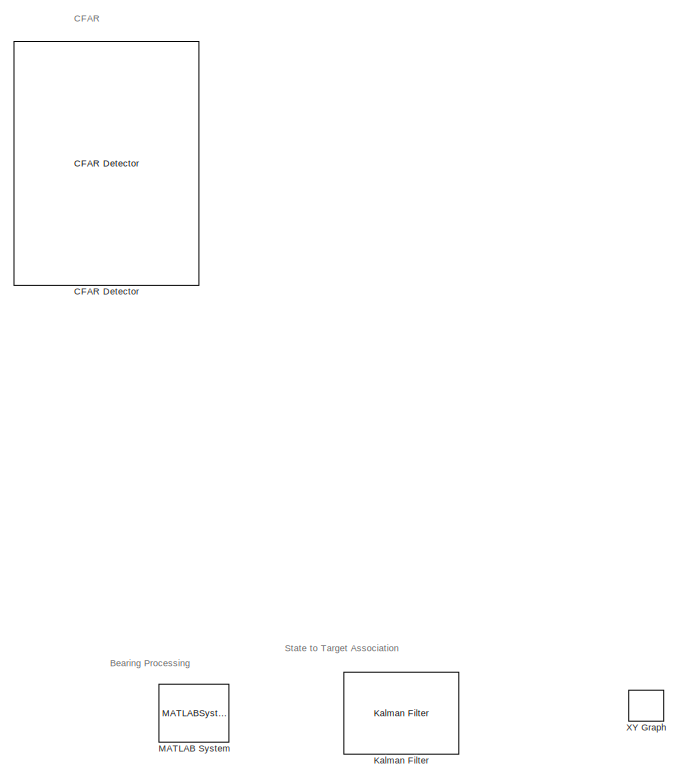
[diagram: root canvas - part 1/2, right side, full height]
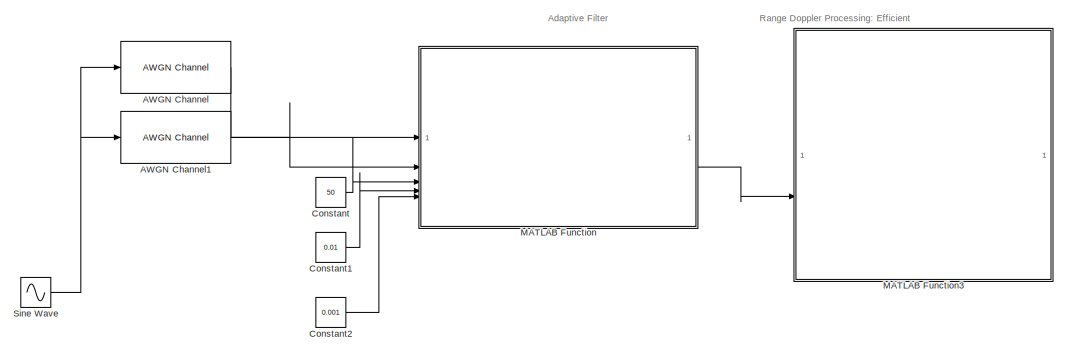
[diagram: root canvas - part 2/2, top left region]
MODEL slx_c5dcfe9b246c
KIND model
CONFIG AbsTol = auto
CONFIG EnableMultiTasking = off
CONFIG FixedStep = auto
CONFIG MaxStep = auto
CONFIG MinStep = auto
CONFIG RelTol = 1e-3
CONFIG SampleTimeConstraint = Unconstrained
CONFIG SolverName = VariableStepAuto
CONFIG StartTime = 0.0
CONFIG StopTime = 10.0
BLOCK [Reference] AWGN Channel  REF=commchan3/AWGN
Channel
  SourceBlock = commchan3/AWGN\nChannel
  SourceType = AWGN Channel
BLOCK [Reference] AWGN Channel1  REF=commchan3/AWGN
Channel
  SourceBlock = commchan3/AWGN\nChannel
  SourceType = AWGN Channel
BLOCK [Reference] CFAR Detector  REF=phaseddetectlib/CFAR Detector
  SourceBlock = phaseddetectlib/CFAR Detector
  SourceType = phased.CFARDetector
BLOCK [Constant] Constant
  Value = 50
BLOCK [Constant] Constant1
  Value = 0.01
BLOCK [Constant] Constant2
  Value = 0.001
BLOCK [Reference] Kalman Filter  REF=dspadpt3/Kalman Filter
  SourceBlock = dspadpt3/Kalman Filter
  SourceType = Kalman Filter
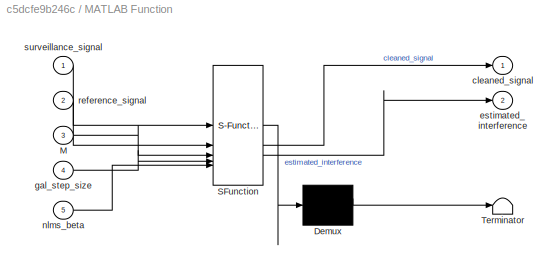
BLOCK [SubSystem] MATLAB Function
  ErrorFcn = Stateflow.Translate.translate
  PermitHierarchicalResolution = ExplicitOnly
  SFBlockType = MATLAB Function
  TreatAsAtomicUnit = on
BLOCK [Demux] MATLAB Function/ Demux 
  Outputs = 1
BLOCK [S-Function] MATLAB Function/ SFunction 
  EnableBusSupport = off
  FunctionName = sf_sfun
  PortCounts = [5 3]
  SFcnIsStateOwnerBlock = off
  SFunctionDeploymentMode = off
  Tag = Stateflow S-Function 2
BLOCK [Terminator] MATLAB Function/ Terminator 
BLOCK [Inport] MATLAB Function/M
  Port = 3
BLOCK [Outport] MATLAB Function/cleaned_signal
BLOCK [Outport] MATLAB Function/estimated_interference
  Port = 2
BLOCK [Inport] MATLAB Function/gal_step_size
  Port = 4
BLOCK [Inport] MATLAB Function/nlms_beta
  Port = 5
BLOCK [Inport] MATLAB Function/reference_signal
  Port = 2
BLOCK [Inport] MATLAB Function/surveillance_signal
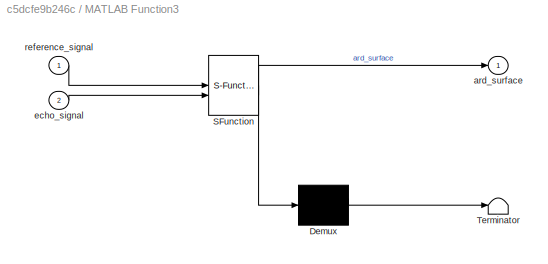
BLOCK [SubSystem] MATLAB Function3
  ErrorFcn = Stateflow.Translate.translate
  PermitHierarchicalResolution = ExplicitOnly
  SFBlockType = MATLAB Function
  TreatAsAtomicUnit = on
BLOCK [Demux] MATLAB Function3/ Demux 
  Outputs = 1
BLOCK [S-Function] MATLAB Function3/ SFunction 
  EnableBusSupport = off
  FunctionName = sf_sfun
  PortCounts = [2 2]
  SFcnIsStateOwnerBlock = off
  SFunctionDeploymentMode = off
  Tag = Stateflow S-Function 4
BLOCK [Terminator] MATLAB Function3/ Terminator 
BLOCK [Outport] MATLAB Function3/ard_surface
BLOCK [Inport] MATLAB Function3/echo_signal
  Port = 2
BLOCK [Inport] MATLAB Function3/reference_signal
BLOCK [MATLABSystem] MATLAB System
BLOCK [Sin] Sine Wave
  SampleTime = 0
BLOCK [Record] XY Graph
  CompatibilityTag = XY
  FileSettingsInternal = {"entries":[{"content":{"excelSettings":{"content":{},"type":"Streamout.ExcelSettings"},"parquetSettings":{"content":{},"type":"Streamout.ParquetSettings"}},"type":"Streamout.FileSettingStorage","uuid":""}],"packageUris":["http:\/\/schema.mathworks.com\/mf0\/streamout_blocks\/R2020a"],"version":"1.0"}
  FrameSettings = [0, 0]
  Layout = [1 1]
  NumPorts = 2.0
  SignalsInternal = {"entries":[{"content":{"signals":[{"content":{"blockPath":[],"dimensions":[1],"domain":"","lineColor":"#a2142f","plots":[ 1 ],"port":1,"signalID":1,"signalName":"XY Graph:1"},"type":"RecordBlkView.Signal","uuid":""},{"content":{"blockPath":[],"dimensions":[1],"domain":"","lineColor":"#139fff","plots":[ 1 ],"port":2,"signalID":2,"signalName":"XY Graph:2"},"type":"RecordBlkView.Signal","uuid":""}]}...<+144ch>
  VisualizationBindings = {"xyplotplugin":{"info":[{"series":[{"bindingParametersList":[{"parameter":"X-Axis","signalID":1,"signalName":"XY Graph:1"},{"parameter":"Y-Axis","signalID":2,"signalName":"XY Graph:2"}],"seriesID":0}],"subplotID":1}]}}
ANNOTATION (root): Adaptive Filter
ANNOTATION (root): Bearing Processing
ANNOTATION (root): CFAR
ANNOTATION (root): Range Doppler Processing: Efficient
ANNOTATION (root): State to Target Association
LINE AWGN Channel1:1 -> MATLAB Function:2
LINE AWGN Channel:1 -> MATLAB Function:1
LINE Constant1:1 -> MATLAB Function:4
LINE Constant2:1 -> MATLAB Function:5
LINE Constant:1 -> MATLAB Function:3
LINE MATLAB Function:2 -> MATLAB Function3:2
NET Sine Wave:1 -> AWGN Channel1:1, AWGN Channel:1
note: NET lines group one-source signal fan-out (src -> all destinations, sorted); 1:1 wires keep LINE
CHART MATLAB Function states=1 transitions=1
  STATE_LABEL 'eML_blk_kernel()'
  STATE_LABEL "SCRIPT:\nfunction [cleaned_signal, estimated_interference] = joint_process_estimator(surveillance_signal, reference_signal, M, gal_step_size, nlms_beta)\n% joint_process_estimator: Implements an adaptive noise canceller.\n%\n% Inputs:\n%   surveillance_signal : The main input signal (e.g., noisy_bb_signal). This is x(n) in the paper's Fig. 5.\n%   reference_signal    : The reference signal correlated wi...<+3608ch>"
CHART MATLAB Function3 states=1 transitions=1
  STATE_LABEL 'eML_blk_kernel()'
  STATE_LABEL 'SCRIPT:\nfunction ard_surface = range_doppler_processing(reference_signal, echo_signal)\n  %first we find the product of the conjugated time delayed reference signal and the echo signal\n  %a find the conjugate of the time delayed reference signal\n  % i = length(reference_signal); %this is how we tell the for loop to stop MISTAKE\n  % declare all the parameters\n  %{\n## ******------Parameters-----*****...<+2642ch>'
CHART  states=0 transitions=0
CHART  states=0 transitions=0
